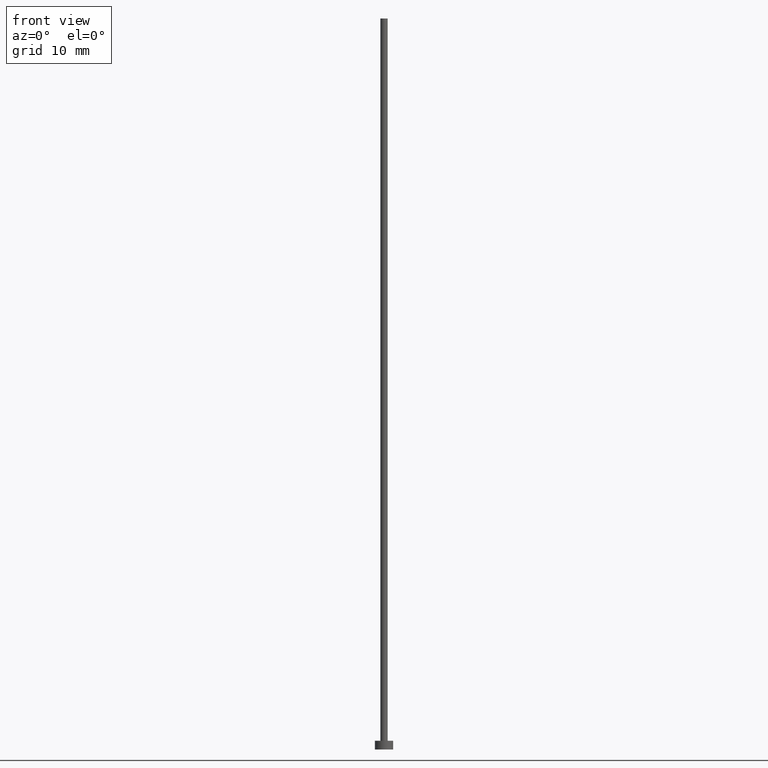
[diagram: clean part render]
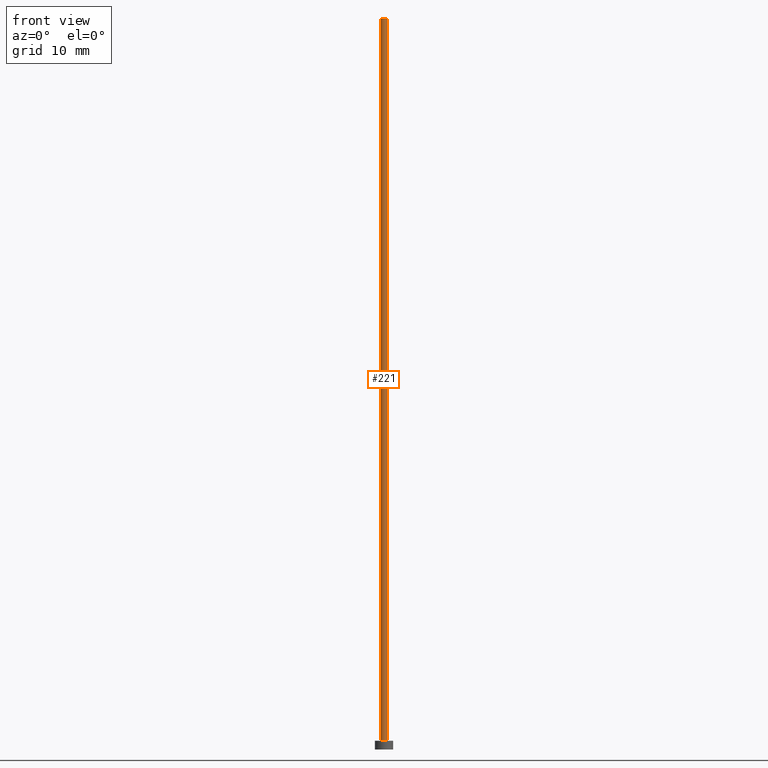
[diagram: same view with one face highlighted and labeled with its STEP entity id]
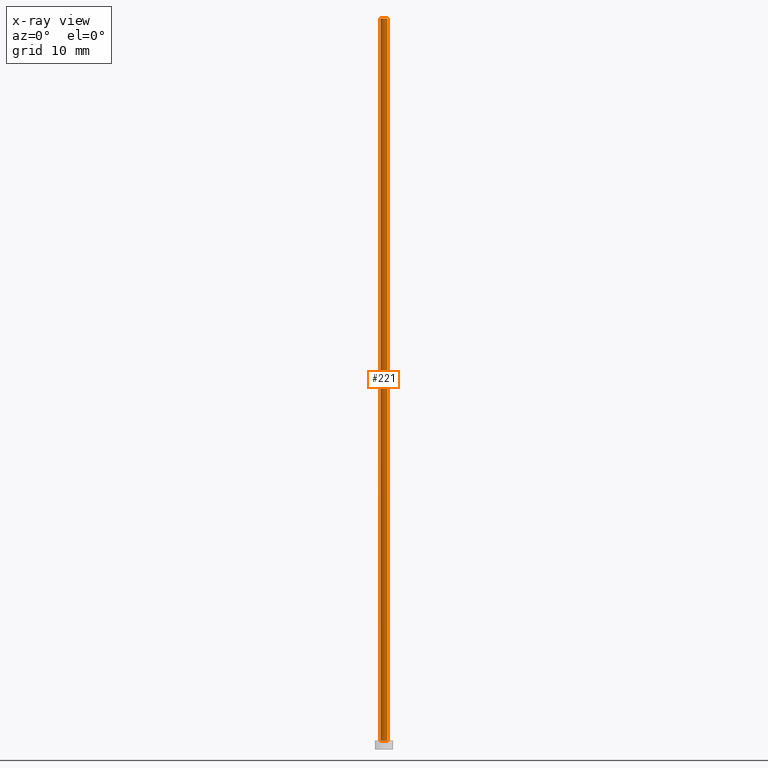
[diagram: x-ray of the same camera — body ghosted, the highlighted face saturated]
A machine part, front view. The second image highlights one B-rep face of the part: STEP entity #221.
The next image is the same camera in x-ray: the body ghosted, the highlighted face saturated — about 0% of this face is hidden behind the body in this view.
In plain terms, the highlighted cylindrical surface (edge-blend (fillet) strip) has radius 0.5 mm, axis along (-0, -0, -1).
Its self-contained STEP definition (entity closure, byte-faithful):
#8 = ORIENTED_EDGE ( 'NONE', *, *, #161, .F. ) ;
#12 = DIRECTION ( 'NONE',  ( -1.000000000000000000, 0.000000000000000000, 0.000000000000000000 ) ) ;
#16 = LINE ( 'NONE', #35, #36 ) ;
#18 = AXIS2_PLACEMENT_3D ( 'NONE', #73, #169, #38 ) ;
#19 = FACE_OUTER_BOUND ( 'NONE', #222, .T. ) ;
#20 = AXIS2_PLACEMENT_3D ( 'NONE', #98, #172, #12 ) ;
#28 = VERTEX_POINT ( 'NONE', #62 ) ;
#33 = CYLINDRICAL_SURFACE ( 'NONE', #20, 0.5000000000000000000 ) ;
#35 = CARTESIAN_POINT ( 'NONE',  ( -0.5000000000000000000, 0.000000000000000000, 100.0000000000000000 ) ) ;
#36 = VECTOR ( 'NONE', #113, 1000.000000000000000 ) ;
#38 = DIRECTION ( 'NONE',  ( 1.000000000000000000, 0.000000000000000000, 0.000000000000000000 ) ) ;
#39 = DIRECTION ( 'NONE',  ( -0.000000000000000000, -0.000000000000000000, -1.000000000000000000 ) ) ;
#50 = ORIENTED_EDGE ( 'NONE', *, *, #126, .T. ) ;
#62 = CARTESIAN_POINT ( 'NONE',  ( -0.5000000000000000000, 0.000000000000000000, 1.199999999999999956 ) ) ;
#73 = CARTESIAN_POINT ( 'NONE',  ( 0.000000000000000000, 0.000000000000000000, 1.199999999999999956 ) ) ;
#75 = DIRECTION ( 'NONE',  ( 0.000000000000000000, 0.000000000000000000, 1.000000000000000000 ) ) ;
#92 = VERTEX_POINT ( 'NONE', #118 ) ;
#94 = LINE ( 'NONE', #212, #195 ) ;
#98 = CARTESIAN_POINT ( 'NONE',  ( 0.000000000000000000, 0.000000000000000000, 100.0000000000000000 ) ) ;
#112 = DIRECTION ( 'NONE',  ( 1.000000000000000000, 0.000000000000000000, 0.000000000000000000 ) ) ;
#113 = DIRECTION ( 'NONE',  ( -0.000000000000000000, -0.000000000000000000, -1.000000000000000000 ) ) ;
#118 = CARTESIAN_POINT ( 'NONE',  ( 0.5000000000000000000, 6.123233995736766036E-17, 1.199999999999999956 ) ) ;
#126 = EDGE_CURVE ( 'NONE', #28, #92, #167, .T. ) ;
#127 = ORIENTED_EDGE ( 'NONE', *, *, #186, .F. ) ;
#137 = CIRCLE ( 'NONE', #177, 0.5000000000000000000 ) ;
#139 = CARTESIAN_POINT ( 'NONE',  ( -0.5000000000000000000, 0.000000000000000000, 100.0000000000000000 ) ) ;
#151 = EDGE_CURVE ( 'NONE', #182, #28, #16, .T. ) ;
#152 = VERTEX_POINT ( 'NONE', #249 ) ;
#161 = EDGE_CURVE ( 'NONE', #182, #152, #137, .T. ) ;
#167 = CIRCLE ( 'NONE', #18, 0.5000000000000000000 ) ;
#169 = DIRECTION ( 'NONE',  ( 0.000000000000000000, 0.000000000000000000, 1.000000000000000000 ) ) ;
#172 = DIRECTION ( 'NONE',  ( -0.000000000000000000, -0.000000000000000000, -1.000000000000000000 ) ) ;
#177 = AXIS2_PLACEMENT_3D ( 'NONE', #191, #75, #112 ) ;
#182 = VERTEX_POINT ( 'NONE', #139 ) ;
#184 = ORIENTED_EDGE ( 'NONE', *, *, #151, .T. ) ;
#186 = EDGE_CURVE ( 'NONE', #152, #92, #94, .T. ) ;
#191 = CARTESIAN_POINT ( 'NONE',  ( 0.000000000000000000, 0.000000000000000000, 100.0000000000000000 ) ) ;
#195 = VECTOR ( 'NONE', #39, 1000.000000000000000 ) ;
#212 = CARTESIAN_POINT ( 'NONE',  ( 0.5000000000000000000, 6.123233995736766036E-17, 100.0000000000000000 ) ) ;
#221 = ADVANCED_FACE ( 'NONE', ( #19 ), #33, .T. ) ;
#222 = EDGE_LOOP ( 'NONE', ( #127, #8, #184, #50 ) ) ;
#249 = CARTESIAN_POINT ( 'NONE',  ( 0.5000000000000000000, 6.123233995736766036E-17, 100.0000000000000000 ) ) ;